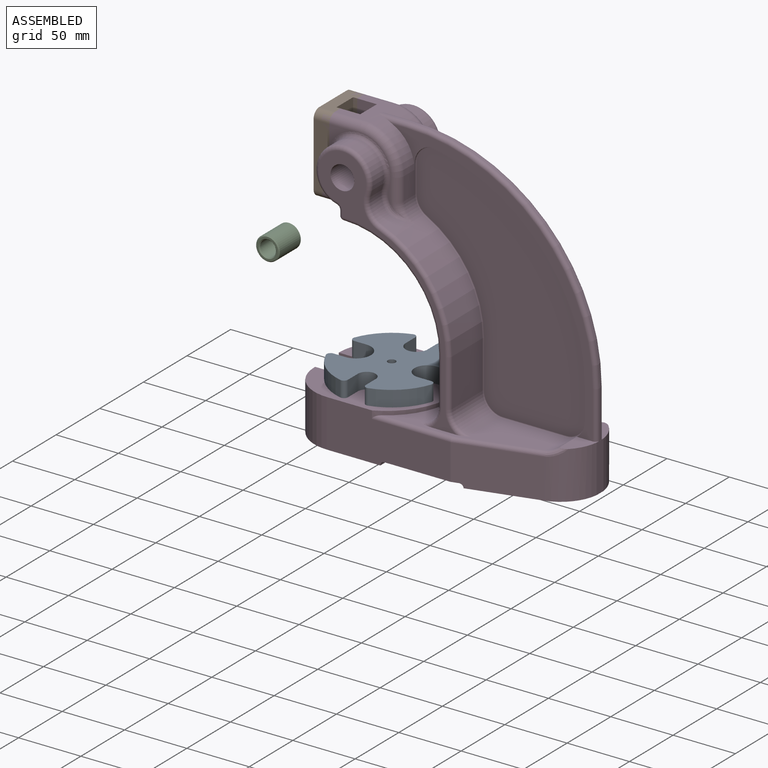
[diagram: assembled view]
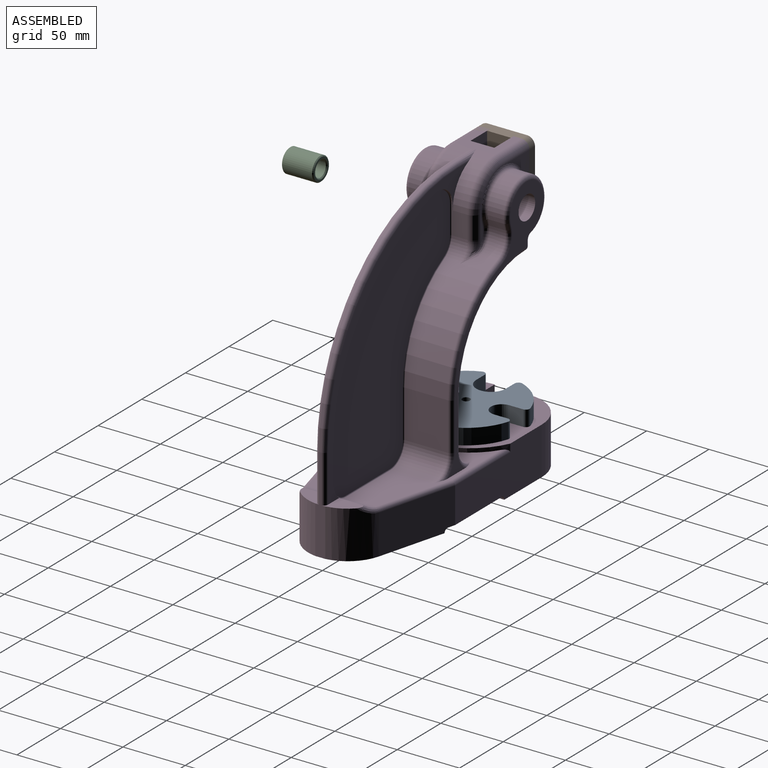
[diagram: assembled view, second angle]
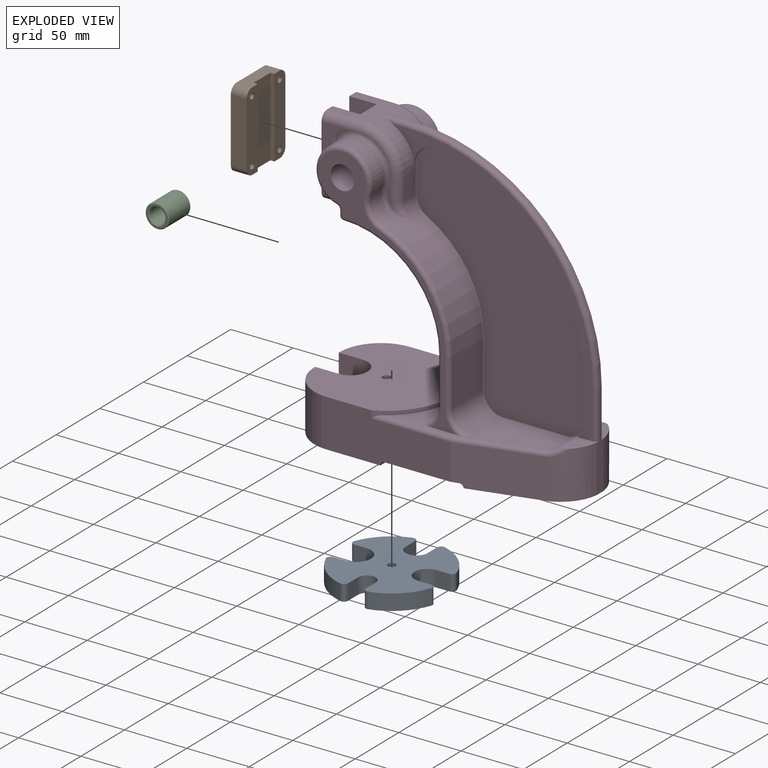
[diagram: exploded view]
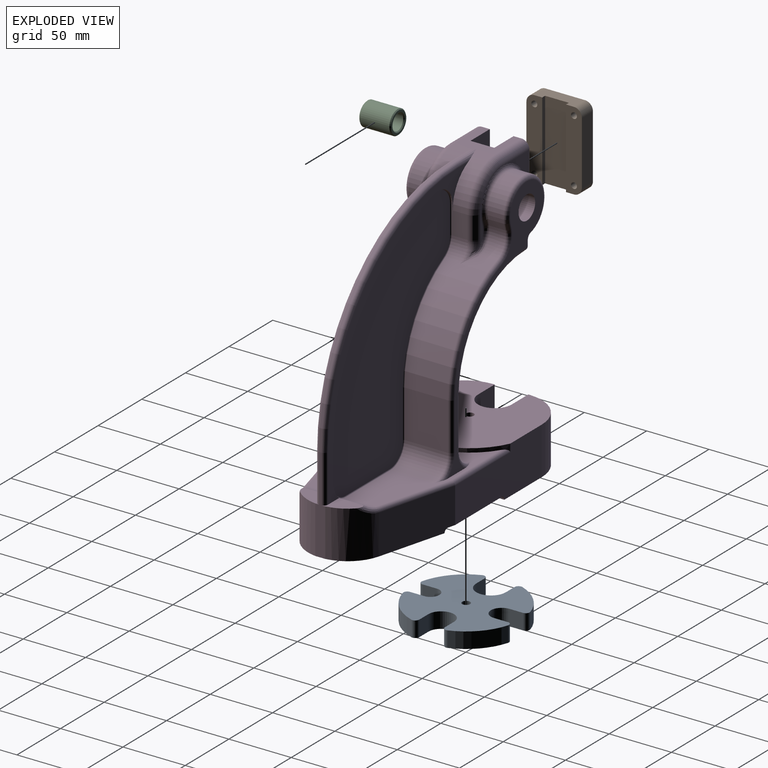
[diagram: exploded view, second angle]
ASSEMBLY  parts=4 mates=2
PART A: 27 faces, bbox 83.8x85.8x12.7 mm
  f0: cylinder r=44.45mm len=28.56mm, axis (0,0,-1), area 510.6mm2, adj f17,f18,f19,f25
  f1: plane 12.7x9.85mm, normal (0,-1,0), area 125.1mm2, adj f2,f17,f18,f25
  f2: cylinder r=11.9mm len=23.8mm, axis (0,0,-1), area 474.8mm2, adj f1,f3,f17,f18
  f3: plane 12.7x9.85mm, normal (0,1,0), area 125.1mm2, adj f2,f17,f18,f26
  f4: cylinder r=44.45mm len=30.27mm, axis (0,0,-1), area 533.1mm2, adj f17,f18,f20,f26
  f5: plane 12.7x11.39mm, normal (1,0,0), area 144.7mm2, adj f6,f17,f18,f20
  f6: cylinder r=7.14mm len=14.28mm, axis (0,0,-1), area 284.8mm2, adj f5,f7,f17,f18
  f7: plane 12.7x11.39mm, normal (-1,0,0), area 144.7mm2, adj f6,f17,f18,f21
  f8: cylinder r=44.45mm len=30.9mm, axis (0,0,-1), area 556.3mm2, adj f17,f18,f21,f22
  f9: plane 12.7x10.43mm, normal (0,1,0), area 132.5mm2, adj f10,f17,f18,f22
  f10: cylinder r=10.31mm len=20.62mm, axis (0,0,-1), area 411.4mm2, adj f9,f11,f17,f18
  f11: plane 12.7x10.43mm, normal (0,-1,0), area 132.5mm2, adj f10,f17,f18,f23
  f12: cylinder r=44.45mm len=29.19mm, axis (0,0,-1), area 533.7mm2, adj f17,f18,f23,f24
  f13: plane 12.7x10.95mm, normal (-1,0,0), area 139mm2, adj f14,f17,f18,f24
  f14: cylinder r=8.72mm len=17.45mm, axis (0,0,-1), area 348.1mm2, adj f13,f15,f17,f18
  f15: plane 12.7x10.95mm, normal (1,0,0), area 139mm2, adj f14,f17,f18,f19
  f16: cylinder r=3.17mm len=12.7mm, axis (0,0,-1), area 253.4mm2, adj f17,f18
  f17: plane 85.84x83.78mm, normal (0,0,1), area 4373.8mm2, adj f0,f1,f2,f3,f4,f5,f6,f7
  f18: plane 85.84x83.78mm, normal (0,0,-1), area 4373.8mm2, adj f0,f1,f2,f3,f4,f5,f6,f7
  f19: cylinder r=3.17mm len=12.7mm, axis (0,0,-1), area 75.1mm2, adj f0,f15,f17,f18
  f20: cylinder r=3.17mm len=12.7mm, axis (0,0,-1), area 73.5mm2, adj f4,f5,f17,f18
  f21: cylinder r=3.17mm len=12.7mm, axis (0,0,-1), area 73.5mm2, adj f7,f8,f17,f18
  f22: cylinder r=3.17mm len=12.7mm, axis (0,0,-1), area 76.8mm2, adj f8,f9,f17,f18
  f23: cylinder r=3.17mm len=12.7mm, axis (0,0,-1), area 76.8mm2, adj f11,f12,f17,f18
  f24: cylinder r=3.17mm len=12.7mm, axis (0,0,-1), area 75.1mm2, adj f12,f13,f17,f18
  f25: cylinder r=3.17mm len=12.7mm, axis (0,0,-1), area 78.4mm2, adj f0,f1,f17,f18
  f26: cylinder r=3.17mm len=12.7mm, axis (0,0,-1), area 78.4mm2, adj f3,f4,f17,f18
PART B: 26 faces, bbox 12.7x44.5x63.5 mm
  f0: plane 63.5x12.7mm, normal (1,0,0), area 753.5mm2, adj f1,f2,f6,f7,f8,f14,f17,f25
  f1: cylinder r=6.35mm len=12.7mm, axis (1,0,0), area 126.7mm2, adj f0,f2,f8,f9
  f2: plane 31.75x12.7mm, normal (0,0,1), area 341.8mm2, adj f0,f1,f3,f9,f10,f23,f24,f25
  f3: cylinder r=6.35mm len=12.7mm, axis (1,0,0), area 126.7mm2, adj f2,f4,f9,f10
  f4: plane 50.8x12.7mm, normal (0,1,0), area 645.2mm2, adj f3,f5,f9,f10
  f5: cylinder r=6.35mm len=12.7mm, axis (1,0,0), area 126.7mm2, adj f4,f6,f9,f10
  f6: plane 31.75x12.7mm, normal (0,0,-1), area 341.8mm2, adj f0,f5,f7,f9,f10,f23,f24,f25
  f7: cylinder r=6.35mm len=12.7mm, axis (1,0,0), area 126.7mm2, adj f0,f6,f8,f9
  f8: plane 50.8x12.7mm, normal (0,-1,0), area 645.2mm2, adj f0,f1,f7,f9
  f9: plane 63.5x44.45mm, normal (-1,0,0), area 2502.9mm2, adj f1,f2,f3,f4,f5,f6,f7,f8
  f10: plane 63.5x12.7mm, normal (1,0,0), area 753.5mm2, adj f2,f3,f4,f5,f6,f11,f20,f24
  f11: cylinder r=2.38mm len=6.35mm, axis (-1,0,0), area 95mm2, adj f10,f12
  f12: plane 9.53x9.53mm, normal (-1,0,0), area 53.4mm2, adj f11,f13
  f13: cylinder r=4.76mm len=9.53mm, axis (-1,0,0), area 190mm2, adj f9,f12
  f14: cylinder r=2.38mm len=6.35mm, axis (-1,0,0), area 95mm2, adj f0,f15
  f15: plane 9.53x9.53mm, normal (-1,0,0), area 53.4mm2, adj f14,f16
  f16: cylinder r=4.76mm len=9.53mm, axis (-1,0,0), area 190mm2, adj f9,f15
  f17: cylinder r=2.38mm len=6.35mm, axis (-1,0,0), area 95mm2, adj f0,f18
  f18: plane 9.53x9.53mm, normal (-1,0,0), area 53.4mm2, adj f17,f19
  f19: cylinder r=4.76mm len=9.53mm, axis (-1,0,0), area 190mm2, adj f9,f18
  f20: cylinder r=2.38mm len=6.35mm, axis (-1,0,0), area 95mm2, adj f10,f21
  f21: plane 9.53x9.53mm, normal (-1,0,0), area 53.4mm2, adj f20,f22
  f22: cylinder r=4.76mm len=9.53mm, axis (-1,0,0), area 190mm2, adj f9,f21
  f23: plane 63.5x19.05mm, normal (1,0,0), area 1209.7mm2, adj f2,f6,f24,f25
  f24: plane 63.5x3.23mm, normal (0,-1,0), area 204.8mm2, adj f2,f6,f10,f23
  f25: plane 63.5x3.23mm, normal (0,1,0), area 204.8mm2, adj f0,f2,f6,f23
PART C: 8 faces, bbox 19.1x25.4x19.1 mm
  f0: plane 17.53x17.53mm, normal (0,-1,0), area 82.3mm2, adj f4,f5
  f1: plane 17.53x17.53mm, normal (0,1,0), area 82.3mm2, adj f6,f7
  f2: cylinder r=9.53mm len=23.88mm, axis (0,1,0), area 1428.9mm2, adj f4,f7
  f3: cylinder r=6.35mm len=23.88mm, axis (0,1,0), area 952.6mm2, adj f5,f6
  f4: cone r=9.53mm half-angle=45deg, axis (0,1,0), area 61.9mm2, adj f0,f2
  f5: cone r=6.35mm half-angle=45deg, axis (0,-1,0), area 45.6mm2, adj f0,f3
  f6: cone r=6.35mm half-angle=45deg, axis (0,1,0), area 45.6mm2, adj f1,f3
  f7: cone r=9.53mm half-angle=45deg, axis (0,-1,0), area 61.9mm2, adj f1,f2
PART D: 180 faces, bbox 234.5x98.1x244 mm
  f0: plane 63.5x12.7mm, normal (-1,0,0), area 753.5mm2, adj f2,f15,f17,f92,f97,f149,f151,f158
  f1: plane 20.23x2.34mm, normal (0,1,0), area 23.9mm2, adj f90,f91,f104,f106
  f2: plane 50.8x30.1mm, normal (0,-1,0), area 515.4mm2, adj f0,f83,f92,f97,f124
  f3: plane 22.59x12.73mm, normal (1,0,0), area 235.4mm2, adj f19,f26,f32,f87,f94,f174
  f4: plane 22.59x12.73mm, normal (1,0,0), area 235.4mm2, adj f10,f14,f33,f86,f90,f164
  f5: plane 99.19x38.1mm, normal (0,-1,0), area 3202mm2, adj f6,f40,f46,f49,f52,f58,f76,f133
  f6: plane 100x95.25mm, normal (0,0,1), area 7398mm2, adj f5,f43,f44,f48,f54,f55,f56,f57
  f7: plane 38.1x34.96mm, normal (1,0,0), area 1331.9mm2, adj f8,f9,f114,f169
  f8: cylinder r=15.88mm len=34.96mm, axis (0,1,0), area 871.7mm2, adj f7,f37,f115,f167
  f9: cylinder r=85.72mm len=80.21mm, axis (0,1,0), area 3442.3mm2, adj f7,f80,f86,f100,f113,f168
  f10: cylinder r=15.88mm len=18.65mm, axis (0,1,0), area 22.7mm2, adj f4,f11,f33,f162
  f11: cylinder r=142.88mm len=140.67mm, axis (0,1,0), area 163.3mm2, adj f10,f12,f33,f160
  f12: plane 25.4x0.82mm, normal (-1,0,0), area 20.8mm2, adj f11,f13,f33,f161
  f13: cylinder r=15.88mm len=24.81mm, axis (0,1,0), area 242.1mm2, adj f12,f33,f37,f45,f139,f140,f163
  f14: cylinder r=31.75mm len=31.75mm, axis (0,1,0), area 616.8mm2, adj f4,f15,f33,f89,f141
  f15: plane 55.5x31.75mm, normal (0,0,1), area 573.2mm2, adj f0,f14,f16,f19,f31,f88,f92,f141
  f16: plane 63.5x12.7mm, normal (-1,0,0), area 753.5mm2, adj f15,f17,f21,f88,f96,f147,f153,f157
  f17: plane 31.75x30.1mm, normal (0,0,-1), area 533.2mm2, adj f0,f16,f18,f96,f97,f156,f157,f158
  f18: cylinder r=76.2mm len=76.2mm, axis (0,1,0), area 9120.7mm2, adj f17,f22,f103,f105,f119,f121
  f19: cylinder r=31.75mm len=31.75mm, axis (0,1,0), area 616.8mm2, adj f3,f15,f32,f93,f144
  f20: plane 20.23x2.34mm, normal (0,-1,0), area 23.9mm2, adj f94,f95,f122,f124
  f21: plane 50.8x30.1mm, normal (0,1,0), area 515.4mm2, adj f16,f78,f88,f96,f106
  f22: plane 76.2x38.1mm, normal (-1,0,0), area 2903.2mm2, adj f18,f98,f101,f117
  f23: cylinder r=15.88mm len=34.96mm, axis (0,1,0), area 871.7mm2, adj f24,f37,f132,f177
  f24: plane 38.1x34.96mm, normal (1,0,0), area 1331.9mm2, adj f23,f25,f131,f179
  f25: cylinder r=85.72mm len=80.21mm, axis (0,1,0), area 3442.3mm2, adj f24,f81,f87,f118,f130,f178
  f26: cylinder r=15.88mm len=18.65mm, axis (0,1,0), area 22.7mm2, adj f3,f27,f32,f172
  f27: cylinder r=142.88mm len=140.67mm, axis (0,1,0), area 163.3mm2, adj f26,f28,f32,f170
  f28: plane 25.4x0.82mm, normal (-1,0,0), area 20.8mm2, adj f27,f29,f32,f171
  f29: cylinder r=15.88mm len=24.81mm, axis (0,1,0), area 242.1mm2, adj f28,f32,f36,f37,f135,f136,f173
  f30: plane 76.2x7.92mm, normal (1,0,0), area 361.9mm2, adj f31,f36,f42,f45,f51,f53,f143,f146
  f31: cylinder r=152.4mm len=152.4mm, axis (0,1,0), area 377mm2, adj f15,f30,f142,f145
  f32: plane 187.33x160.79mm, normal (0,-1,0), area 1900.4mm2, adj f3,f19,f26,f27,f28,f29,f36,f144
  f33: plane 187.33x160.79mm, normal (0,1,0), area 1900.4mm2, adj f4,f10,f11,f12,f13,f14,f45,f141
  f34: plane 180.67x135mm, normal (0,-1,0), area 14138.8mm2, adj f170,f171,f172,f173,f174,f175,f176,f177
  f35: plane 180.67x135mm, normal (0,1,0), area 14138.8mm2, adj f160,f161,f162,f163,f164,f165,f166,f167
  f36: plane 26.58x18.73mm, normal (0,0,1), area 245.8mm2, adj f29,f30,f32,f53,f136,f146
  f37: plane 119.12x89.67mm, normal (0,0,1), area 4280.2mm2, adj f8,f13,f23,f29,f76,f77,f84,f98
  f38: cylinder r=3.17mm len=9.06mm, axis (0,1,0), area 40.9mm2, adj f40,f42,f52,f69
  f39: cylinder r=3.17mm len=7.93mm, axis (0,1,0), area 39.5mm2, adj f41,f46,f48,f65
  f40: plane 58.73x9.7mm, normal (0,0,-1), area 467.1mm2, adj f5,f38,f49,f52,f64,f69
  f41: plane 58.73x9.7mm, normal (0,0,-1), area 467.1mm2, adj f39,f47,f48,f50,f65,f67
  f42: plane 90.55x77.8mm, normal (0,0,-1), area 1454mm2, adj f30,f38,f47,f50,f51,f52,f53,f59
  f43: plane 38.1x1.61mm, normal (-1,0,0), area 61.5mm2, adj f6,f46,f54,f58
  f44: plane 38.1x1.61mm, normal (-1,0,0), area 61.5mm2, adj f6,f46,f55,f57
  f45: plane 26.58x18.73mm, normal (0,0,1), area 245.8mm2, adj f13,f30,f33,f51,f140,f143
  f46: plane 95.25x76.2mm, normal (0,0,-1), area 2029.8mm2, adj f5,f39,f43,f44,f48,f49,f54,f55
  f47: cylinder r=3.17mm len=9.06mm, axis (0,1,0), area 40.9mm2, adj f41,f42,f50,f67
  f48: plane 99.19x38.1mm, normal (0,1,0), area 3202mm2, adj f6,f39,f41,f46,f50,f57,f76,f137
  f49: cylinder r=3.17mm len=7.93mm, axis (0,1,0), area 39.5mm2, adj f5,f40,f46,f64
  f50: plane 63.64x32.15mm, normal (0.26,0.97,0), area 2053.6mm2, adj f41,f42,f47,f48,f51,f138,f139
  f51: cylinder r=31.75mm len=38.1mm, axis (0,0,-1), area 1379.2mm2, adj f30,f42,f45,f50,f140
  f52: plane 63.64x32.15mm, normal (0.26,-0.97,0), area 2053.6mm2, adj f5,f38,f40,f42,f53,f134,f135
  f53: cylinder r=31.75mm len=38.1mm, axis (0,0,-1), area 1379.2mm2, adj f30,f36,f42,f52,f136
  f54: plane 38.1x19.05mm, normal (0,1,0), area 725.8mm2, adj f6,f43,f46,f56
  f55: plane 38.1x19.05mm, normal (0,-1,0), area 725.8mm2, adj f6,f44,f46,f56
  f56: cylinder r=13.49mm len=38.1mm, axis (0,0,-1), area 1615.1mm2, adj f6,f46,f54,f55
  f57: cylinder r=33.32mm len=38.1mm, axis (0,0,-1), area 1963.7mm2, adj f6,f44,f46,f48
  f58: cylinder r=33.32mm len=38.1mm, axis (0,0,-1), area 1963.7mm2, adj f5,f6,f43,f46
  f59: plane 30.18x6.86mm, normal (-1,0,0), area 207mm2, adj f42,f60,f68,f70
  f60: plane 31.27x5.6mm, normal (0,0,-1), area 124.1mm2, adj f59,f61,f68,f70
  f61: cylinder r=23.8mm len=46.06mm, axis (0,1,0), area 499.2mm2, adj f60,f62,f67,f68,f69,f70
  f62: plane 84.13x79.4mm, normal (0,0,-1), area 5642.5mm2, adj f61,f64,f65,f66,f67,f69
  f63: plane 100.62x79.4mm, normal (0,0,-1), area 6568.5mm2, adj f64,f65,f66,f71,f72,f73,f74,f75
  f64: plane 98.15x30.18mm, normal (0,1,0), area 2718.8mm2, adj f40,f46,f49,f62,f63,f66,f69,f75
  f65: plane 98.15x30.18mm, normal (0,-1,0), area 2718.8mm2, adj f39,f41,f46,f62,f63,f66,f67,f74
  f66: plane 79.4x3.18mm, normal (-1,0,0), area 252.1mm2, adj f62,f63,f64,f65
  f67: plane 62.63x27.36mm, normal (-0.26,-0.97,0), area 1710.8mm2, adj f41,f42,f47,f61,f62,f65,f68
  f68: cylinder r=23.83mm len=30.18mm, axis (0,0,-1), area 814.8mm2, adj f42,f59,f60,f61,f67
  f69: plane 62.63x27.36mm, normal (-0.26,0.97,0), area 1710.8mm2, adj f38,f40,f42,f61,f62,f64,f70
  f70: cylinder r=23.83mm len=30.18mm, axis (0,0,-1), area 814.8mm2, adj f42,f59,f60,f61,f69
  f71: plane 30.18x10.12mm, normal (0,-1,0), area 305.3mm2, adj f46,f63,f73,f75
  f72: plane 30.18x10.12mm, normal (0,1,0), area 305.3mm2, adj f46,f63,f73,f74
  f73: cylinder r=21.42mm len=42.84mm, axis (0,0,-1), area 2030.4mm2, adj f46,f63,f71,f72
  f74: cylinder r=25.4mm len=30.18mm, axis (0,0,-1), area 986.2mm2, adj f46,f63,f65,f72
  f75: cylinder r=25.4mm len=30.18mm, axis (0,0,-1), area 986.2mm2, adj f46,f63,f64,f71
  f76: cylinder r=52.37mm len=95.25mm, axis (0,0,1), area 401mm2, adj f5,f6,f37,f48,f133,f137
  f77: plane 180.98x110.12mm, normal (0,1,0), area 1717.8mm2, adj f37,f85,f99,f101,f103,f109,f110,f111
  f78: plane 16.73x3.98mm, normal (-1,0,0), area 64.1mm2, adj f21,f96,f105,f106,f108,f109
  f79: cylinder r=22.23mm len=44.45mm, axis (0,1,0), area 1356.2mm2, adj f80,f106,f108,f111
  f80: cylinder r=15.88mm len=20.22mm, axis (0,1,0), area 319.4mm2, adj f9,f79,f102,f104,f112
  f81: cylinder r=15.88mm len=20.22mm, axis (0,1,0), area 319.4mm2, adj f25,f82,f120,f122,f129
  f82: cylinder r=22.23mm len=44.45mm, axis (0,1,0), area 1356.2mm2, adj f81,f124,f126,f128
  f83: plane 16.73x3.98mm, normal (-1,0,0), area 64.1mm2, adj f2,f97,f121,f124,f125,f126
  f84: plane 180.98x110.12mm, normal (0,-1,0), area 1717.8mm2, adj f37,f85,f116,f117,f119,f125,f127,f128
  f85: cylinder r=9.53mm len=82.55mm, axis (0,1,0), area 4727mm2, adj f77,f84,f156,f157,f158,f159
  f86: cylinder r=15.88mm len=14.02mm, axis (0,1,0), area 218.9mm2, adj f4,f9,f91,f166
  f87: cylinder r=15.88mm len=14.02mm, axis (0,1,0), area 218.9mm2, adj f3,f25,f95,f176
  f88: cylinder r=6.35mm len=30.1mm, axis (-1,0,0), area 300.2mm2, adj f15,f16,f21,f89
  f89: torus R=25.4mm, axis (0,-1,0), area 461.3mm2, adj f14,f88,f90,f106
  f90: cylinder r=6.35mm len=18.2mm, axis (0,0,1), area 181.6mm2, adj f1,f4,f89,f91
  f91: torus R=22.23mm, axis (0,-1,0), area 98mm2, adj f1,f86,f90,f100,f102
  f92: cylinder r=6.35mm len=30.1mm, axis (1,0,0), area 300.2mm2, adj f0,f2,f15,f93
  f93: torus R=25.4mm, axis (0,-1,0), area 461.3mm2, adj f19,f92,f94,f124
  f94: cylinder r=6.35mm len=18.2mm, axis (0,0,-1), area 181.6mm2, adj f3,f20,f93,f95
  f95: torus R=22.23mm, axis (0,-1,0), area 98mm2, adj f20,f87,f94,f118,f120
  f96: cylinder r=6.35mm len=30.1mm, axis (1,0,0), area 279.1mm2, adj f16,f17,f21,f78,f105
  f97: cylinder r=6.35mm len=30.1mm, axis (-1,0,0), area 279.1mm2, adj f0,f2,f17,f83,f121
  f98: cylinder r=15.88mm len=76.2mm, axis (0,-1,0), area 1900.2mm2, adj f22,f37,f99,f116
  f99: torus R=19.05mm, axis (0,-1,0), area 107.7mm2, adj f37,f77,f98,f101
  f100: bspline ~12.01x8.85mm, area 17.9mm2, adj f9,f91,f102
  f101: cylinder r=3.17mm len=38.1mm, axis (0,0,-1), area 190mm2, adj f22,f77,f99,f103
  f102: bspline ~10.6x9.56mm, area 36.6mm2, adj f80,f91,f100,f104
  f103: torus R=79.38mm, axis (0,-1,0), area 606mm2, adj f18,f77,f101,f107
  f104: torus R=12.7mm, axis (0,-1,0), area 70.6mm2, adj f1,f80,f102,f106
  f105: cylinder r=3.17mm len=22.23mm, axis (0,1,0), area 97.1mm2, adj f18,f78,f96,f107
  f106: torus R=25.4mm, axis (0,-1,0), area 570mm2, adj f1,f21,f78,f79,f89,f104,f108
  f107: sphere r=3.17mm, area 21.6mm2, adj f103,f105,f109
  f108: cylinder r=3.17mm len=15.82mm, axis (0,1,0), area 59.7mm2, adj f78,f79,f106,f110
  f109: cylinder r=3.17mm len=3.98mm, axis (0,0,-1), area 19.9mm2, adj f77,f78,f107,f110
  f110: torus R=6.35mm, axis (0,-1,0), area 28.5mm2, adj f77,f108,f109,f111
  f111: torus R=19.05mm, axis (0,-1,0), area 504.9mm2, adj f77,f79,f110,f112
  f112: torus R=19.05mm, axis (0,-1,0), area 132.1mm2, adj f77,f80,f111,f113
  f113: torus R=82.55mm, axis (0,-1,0), area 510.4mm2, adj f9,f77,f112,f114
  f114: cylinder r=3.17mm len=38.1mm, axis (0,0,1), area 190mm2, adj f7,f77,f113,f115
  f115: torus R=19.05mm, axis (0,-1,0), area 107.7mm2, adj f8,f37,f77,f114
  f116: torus R=19.05mm, axis (0,-1,0), area 107.7mm2, adj f37,f84,f98,f117
  f117: cylinder r=3.17mm len=38.1mm, axis (0,0,1), area 190mm2, adj f22,f84,f116,f119
  f118: bspline ~11.06x8.44mm, area 17.9mm2, adj f25,f95,f120
  f119: torus R=79.38mm, axis (0,-1,0), area 606mm2, adj f18,f84,f117,f123
  f120: bspline ~9.12x8.99mm, area 36.6mm2, adj f81,f95,f118,f122
  f121: cylinder r=3.17mm len=22.23mm, axis (0,1,0), area 97.1mm2, adj f18,f83,f97,f123
  f122: torus R=12.7mm, axis (0,-1,0), area 70.6mm2, adj f20,f81,f120,f124
  f123: sphere r=3.17mm, area 15.8mm2, adj f119,f121,f125
  f124: torus R=25.4mm, axis (0,-1,0), area 570mm2, adj f2,f20,f82,f83,f93,f122,f126
  f125: cylinder r=3.17mm len=3.98mm, axis (0,0,1), area 19.9mm2, adj f83,f84,f123,f127
  f126: cylinder r=3.17mm len=15.82mm, axis (0,1,0), area 59.7mm2, adj f82,f83,f124,f127
  f127: torus R=6.35mm, axis (0,-1,0), area 28.5mm2, adj f84,f125,f126,f128
  f128: torus R=19.05mm, axis (0,-1,0), area 504.9mm2, adj f82,f84,f127,f129
  f129: torus R=19.05mm, axis (0,-1,0), area 132.1mm2, adj f81,f84,f128,f130
  f130: torus R=82.55mm, axis (0,-1,0), area 510.4mm2, adj f25,f84,f129,f131
  f131: cylinder r=3.17mm len=38.1mm, axis (0,0,-1), area 190mm2, adj f24,f84,f130,f132
  f132: torus R=19.05mm, axis (0,-1,0), area 107.7mm2, adj f23,f37,f84,f131
  f133: cylinder r=3.17mm len=63.09mm, axis (1,0,0), area 298.9mm2, adj f5,f37,f76,f134
  f134: cylinder r=3.17mm len=62.81mm, axis (0.97,0.26,0), area 319mm2, adj f37,f52,f133,f135
  f135: bspline ~3.41x3.21mm, area 6mm2, adj f29,f52,f134,f136
  f136: bspline ~18.95x11.92mm, area 79.7mm2, adj f29,f36,f53,f135
  f137: cylinder r=3.17mm len=63.09mm, axis (-1,0,0), area 298.9mm2, adj f37,f48,f76,f138
  f138: cylinder r=3.17mm len=62.81mm, axis (-0.97,0.26,0), area 319mm2, adj f37,f50,f137,f139
  f139: bspline ~6.89x4.84mm, area 6mm2, adj f13,f50,f138,f140
  f140: bspline ~17.46x11.57mm, area 79.7mm2, adj f13,f45,f51,f139
  f141: cylinder r=3.17mm len=25.4mm, axis (-1,0,0), area 92.2mm2, adj f14,f15,f33,f142
  f142: torus R=149.22mm, axis (0,-1,0), area 1184.9mm2, adj f31,f33,f141,f143
  f143: cylinder r=3.17mm len=38.1mm, axis (0,0,1), area 190mm2, adj f30,f33,f45,f142
  f144: cylinder r=3.17mm len=25.4mm, axis (1,0,0), area 92.2mm2, adj f15,f19,f32,f145
  f145: torus R=149.22mm, axis (0,-1,0), area 1184.9mm2, adj f31,f32,f144,f146
  f146: cylinder r=3.17mm len=38.1mm, axis (0,0,-1), area 190mm2, adj f30,f32,f36,f145
  f147: cylinder r=2.38mm len=6.35mm, axis (-1,0,0), area 95mm2, adj f16,f148
  f148: cone r=0mm half-angle=59deg, axis (-1,0,0), area 20.8mm2, adj f147
  f149: cylinder r=2.38mm len=6.35mm, axis (-1,0,0), area 95mm2, adj f0,f150
  f150: cone r=0mm half-angle=59deg, axis (-1,0,0), area 20.8mm2, adj f149
  f151: cylinder r=2.38mm len=6.35mm, axis (-1,0,0), area 95mm2, adj f0,f152
  f152: cone r=0mm half-angle=59deg, axis (-1,0,0), area 20.8mm2, adj f151
  f153: cylinder r=2.38mm len=6.35mm, axis (-1,0,0), area 95mm2, adj f16,f154
  f154: cone r=0mm half-angle=59deg, axis (-1,0,0), area 20.8mm2, adj f153
  f155: cylinder r=3.17mm len=7.93mm, axis (0,0,1), area 158.1mm2, adj f6,f63
  f156: plane 26.47x19.05mm, normal (-1,0,0), area 504.2mm2, adj f17,f85,f157,f158
  f157: plane 63.5x22.17mm, normal (0,-1,0), area 1396.6mm2, adj f15,f16,f17,f85,f156,f159
  f158: plane 63.5x22.17mm, normal (0,1,0), area 1396.6mm2, adj f0,f15,f17,f85,f156,f159
  f159: plane 26.47x19.05mm, normal (-1,0,0), area 504.2mm2, adj f15,f85,f157,f158
  f160: torus R=142.11mm, axis (0,-1,0), area 238.1mm2, adj f11,f35,f161,f162
  f161: cylinder r=0.76mm len=25.4mm, axis (0,0,1), area 30.4mm2, adj f12,f35,f160,f163
  f162: torus R=15.11mm, axis (0,-1,0), area 32.6mm2, adj f10,f35,f160,f164
  f163: torus R=15.11mm, axis (0,-1,0), area 29.3mm2, adj f13,f35,f161,f165
  f164: cylinder r=0.76mm len=22.59mm, axis (0,0,1), area 27mm2, adj f4,f35,f162,f166
  f165: cylinder r=0.76mm len=50.8mm, axis (1,0,0), area 60.8mm2, adj f35,f37,f163,f167
  f166: torus R=15.11mm, axis (0,-1,0), area 20.2mm2, adj f35,f86,f164,f168
  f167: torus R=15.11mm, axis (0,-1,0), area 29.3mm2, adj f8,f35,f165,f169
  f168: torus R=86.49mm, axis (0,-1,0), area 111.5mm2, adj f9,f35,f166,f169
  f169: cylinder r=0.76mm len=38.1mm, axis (0,0,-1), area 45.6mm2, adj f7,f35,f167,f168
  f170: torus R=142.11mm, axis (0,-1,0), area 238.1mm2, adj f27,f34,f171,f172
  f171: cylinder r=0.76mm len=25.4mm, axis (0,0,-1), area 30.4mm2, adj f28,f34,f170,f173
  f172: torus R=15.11mm, axis (0,-1,0), area 32.6mm2, adj f26,f34,f170,f174
  f173: torus R=15.11mm, axis (0,-1,0), area 29.3mm2, adj f29,f34,f171,f175
  f174: cylinder r=0.76mm len=22.59mm, axis (0,0,-1), area 27mm2, adj f3,f34,f172,f176
  f175: cylinder r=0.76mm len=50.8mm, axis (-1,0,0), area 60.8mm2, adj f34,f37,f173,f177
  f176: torus R=15.11mm, axis (0,-1,0), area 20.2mm2, adj f34,f87,f174,f178
  f177: torus R=15.11mm, axis (0,-1,0), area 29.3mm2, adj f23,f34,f175,f179
  f178: torus R=86.49mm, axis (0,-1,0), area 111.5mm2, adj f25,f34,f176,f179
  f179: cylinder r=0.76mm len=38.1mm, axis (0,0,1), area 45.6mm2, adj f24,f34,f177,f178
PLACE A t=(-37.18,28.74,-26.08)mm
PLACE B t=(-35.14,28.74,-26.08)mm
PLACE C t=(-31.2,-129,-36.54)mm
PLACE D t=(-41.49,28.74,-26.08)mm fixed
MATE fastened B.f17 <-> D.f151  axis (1,0,0) through (-65.24,12.86,-51.48)mm
MATE fastened A.f16 <-> D.f6  axis (0,0,-1) through (-30.83,28.74,-184.83)mm
